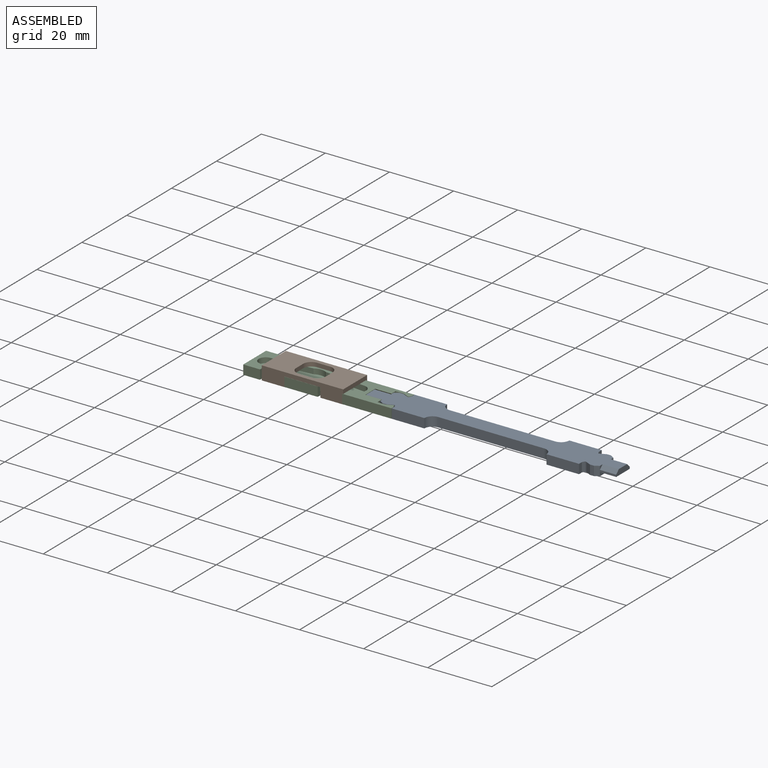
[diagram: assembled view]
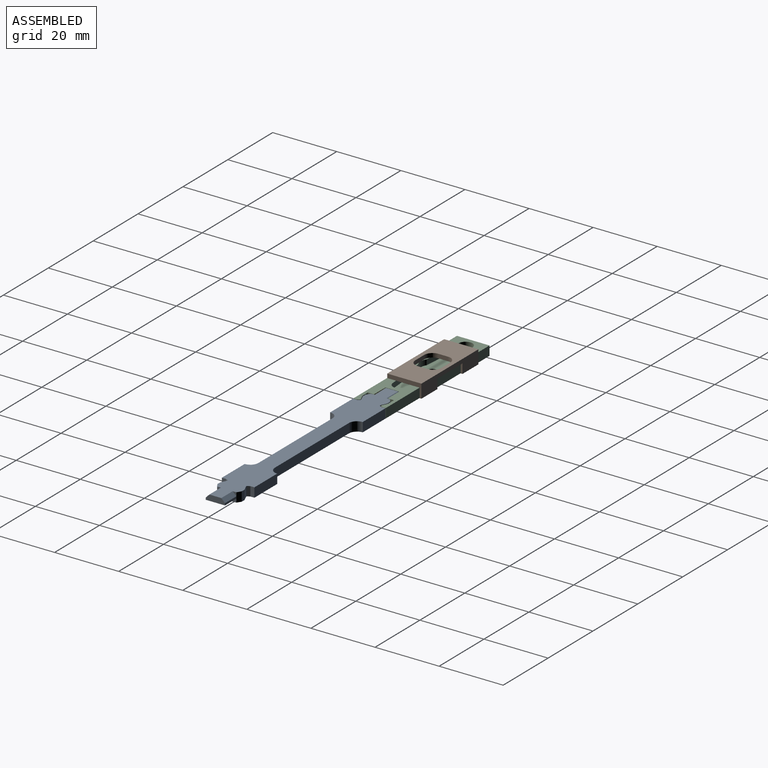
[diagram: assembled view, second angle]
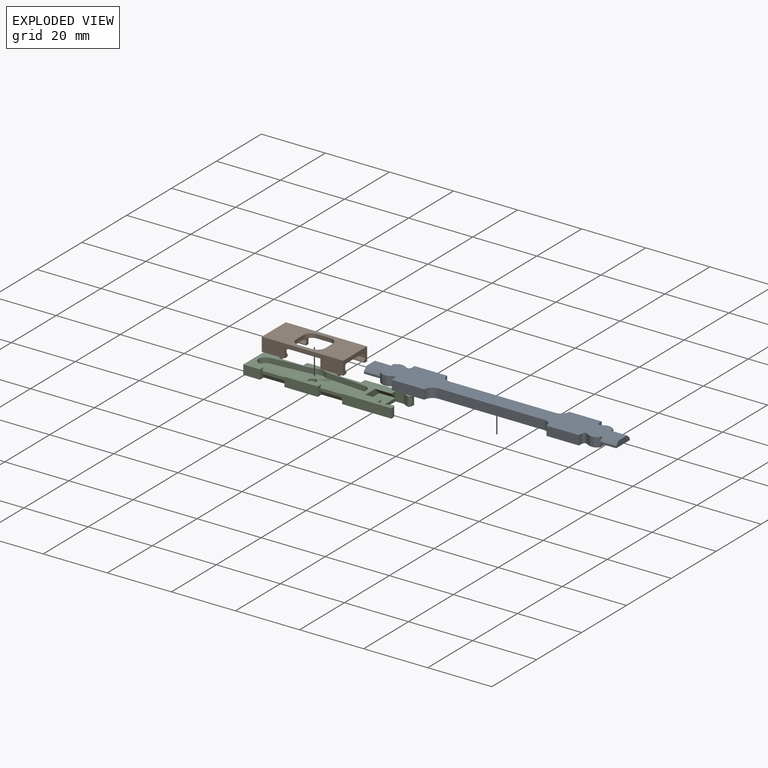
[diagram: exploded view]
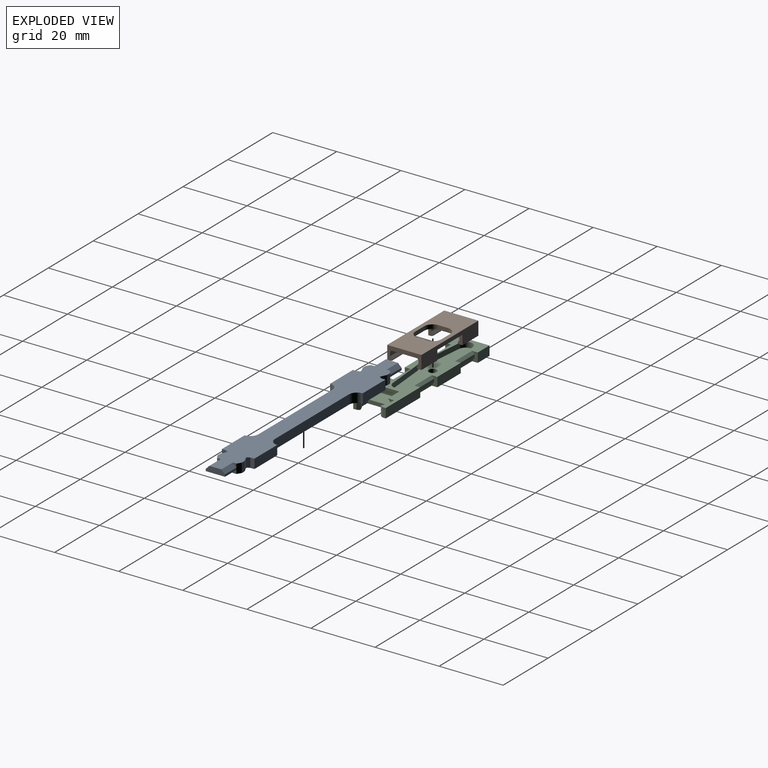
[diagram: exploded view, second angle]
ASSEMBLY  parts=3 mates=3
PART A: 54 faces, bbox 78.7x10.2x2.9 mm
  f0: plane 6.01x1.78mm, normal (-1,0,0), area 9.4mm2, adj f1,f3,f4,f20,f22,f24
  f1: plane 78.74x10.16mm, normal (0,0,1), area 514mm2, adj f0,f5,f6,f7,f8,f9,f10,f11
  f2: plane 68.58x10.16mm, normal (0,0,-1), area 476.2mm2, adj f5,f6,f7,f8,f9,f10,f11,f12
  f3: plane 5.08x0.64mm, normal (0,-1,0), area 3.2mm2, adj f0,f8,f22,f24
  f4: plane 5.08x0.64mm, normal (0,1,0), area 3.2mm2, adj f0,f13,f20,f22
  f5: plane 10.16x2.92mm, normal (0,1,0), area 29.7mm2, adj f1,f2,f18,f25
  f6: plane 10.16x2.92mm, normal (0,-1,0), area 29.7mm2, adj f1,f2,f9,f26
  f7: plane 2.92x1.27mm, normal (0,-1,0), area 3.7mm2, adj f1,f2,f8,f12
  f8: plane 2.92x1.27mm, normal (-0.53,-0.85,0), area 4.4mm2, adj f1,f2,f3,f7,f21,f23
  f9: plane 2.92x1.27mm, normal (-1,0,0), area 3.7mm2, adj f1,f2,f6,f10
  f10: plane 2.92x0.8mm, normal (-0.89,-0.45,0), area 2.6mm2, adj f1,f2,f9,f11
  f11: plane 2.92x0.41mm, normal (0,-1,0), area 1.2mm2, adj f1,f2,f10,f12
  f12: plane 2.92x1.72mm, normal (0.42,-0.91,0), area 5.6mm2, adj f1,f2,f7,f11
  f13: plane 2.92x1.27mm, normal (-0.53,0.85,0), area 4.4mm2, adj f1,f2,f4,f14,f19,f21
  f14: plane 2.92x1.27mm, normal (0,1,0), area 3.7mm2, adj f1,f2,f13,f15
  f15: plane 2.92x1.72mm, normal (0.42,0.91,0), area 5.6mm2, adj f1,f2,f14,f16
  f16: plane 2.92x0.41mm, normal (0,1,0), area 1.2mm2, adj f1,f2,f15,f17
  f17: plane 2.92x0.8mm, normal (-0.89,0.45,0), area 2.6mm2, adj f1,f2,f16,f18
  f18: plane 2.92x1.27mm, normal (-1,0,0), area 3.7mm2, adj f1,f2,f5,f17
  f19: plane 1.14x1.14mm, normal (-1,0,0), area 0.7mm2, adj f1,f13,f20
  f20: plane 5.08x1.14mm, normal (0,0.71,0.71), area 8.2mm2, adj f0,f1,f4,f19
  f21: plane 6.01x1.14mm, normal (-1,0,0), area 6.9mm2, adj f2,f8,f13,f22
  f22: plane 6.01x5.08mm, normal (0,0,-1), area 30.5mm2, adj f0,f3,f4,f21
  f23: plane 1.14x1.14mm, normal (-1,0,0), area 0.7mm2, adj f1,f8,f24
  f24: plane 5.08x1.14mm, normal (0,-0.71,0.71), area 8.2mm2, adj f0,f1,f3,f23
  f25: cylinder r=2.54mm len=2.92mm, axis (0,0,1), area 11.7mm2, adj f1,f2,f5,f27
  f26: cylinder r=2.54mm len=2.92mm, axis (0,0,1), area 11.7mm2, adj f1,f2,f6,f28
  f27: plane 33.02x2.92mm, normal (0,1,0), area 96.5mm2, adj f1,f2,f25,f52
  f28: plane 33.02x2.92mm, normal (0,-1,0), area 96.5mm2, adj f1,f2,f26,f53
  f29: plane 6.01x1.78mm, normal (1,0,0), area 9.4mm2, adj f1,f30,f31,f47,f49,f51
  f30: plane 5.08x0.64mm, normal (0,-1,0), area 3.2mm2, adj f29,f35,f49,f51
  f31: plane 5.08x0.64mm, normal (0,1,0), area 3.2mm2, adj f29,f40,f47,f49
  f32: plane 10.16x2.92mm, normal (0,1,0), area 29.7mm2, adj f1,f2,f45,f52
  f33: plane 10.16x2.92mm, normal (0,-1,0), area 29.7mm2, adj f1,f2,f36,f53
  f34: plane 2.92x1.27mm, normal (0,-1,0), area 3.7mm2, adj f1,f2,f35,f39
  f35: plane 2.92x1.27mm, normal (0.53,-0.85,0), area 4.4mm2, adj f1,f2,f30,f34,f48,f50
  f36: plane 2.92x1.27mm, normal (1,0,0), area 3.7mm2, adj f1,f2,f33,f37
  f37: plane 2.92x0.8mm, normal (0.89,-0.45,0), area 2.6mm2, adj f1,f2,f36,f38
  f38: plane 2.92x0.41mm, normal (0,-1,0), area 1.2mm2, adj f1,f2,f37,f39
  f39: plane 2.92x1.72mm, normal (-0.42,-0.91,0), area 5.6mm2, adj f1,f2,f34,f38
  f40: plane 2.92x1.27mm, normal (0.53,0.85,0), area 4.4mm2, adj f1,f2,f31,f41,f46,f48
  f41: plane 2.92x1.27mm, normal (0,1,0), area 3.7mm2, adj f1,f2,f40,f42
  f42: plane 2.92x1.72mm, normal (-0.42,0.91,0), area 5.6mm2, adj f1,f2,f41,f43
  f43: plane 2.92x0.41mm, normal (0,1,0), area 1.2mm2, adj f1,f2,f42,f44
  f44: plane 2.92x0.8mm, normal (0.89,0.45,0), area 2.6mm2, adj f1,f2,f43,f45
  f45: plane 2.92x1.27mm, normal (1,0,0), area 3.7mm2, adj f1,f2,f32,f44
  f46: plane 1.14x1.14mm, normal (1,0,0), area 0.7mm2, adj f1,f40,f47
  f47: plane 5.08x1.14mm, normal (0,0.71,0.71), area 8.2mm2, adj f1,f29,f31,f46
  f48: plane 6.01x1.14mm, normal (1,0,0), area 6.9mm2, adj f2,f35,f40,f49
  f49: plane 6.01x5.08mm, normal (0,0,-1), area 30.5mm2, adj f29,f30,f31,f48
  f50: plane 1.14x1.14mm, normal (1,0,0), area 0.7mm2, adj f1,f35,f51
  f51: plane 5.08x1.14mm, normal (0,-0.71,0.71), area 8.2mm2, adj f1,f29,f30,f50
  f52: cylinder r=2.54mm len=2.92mm, axis (0,0,1), area 11.7mm2, adj f1,f2,f27,f32
  f53: cylinder r=2.54mm len=2.92mm, axis (0,0,1), area 11.7mm2, adj f1,f2,f28,f33
PART B: 42 faces, bbox 25.4x10.7x4.2 mm
  f0: plane 25.4x4.24mm, normal (0,1,0), area 74.5mm2, adj f2,f3,f8,f9,f10,f19,f20,f21
  f1: plane 25.4x4.24mm, normal (0,-1,0), area 74.5mm2, adj f2,f3,f8,f14,f15,f20,f25,f26
  f2: plane 25.4x10.67mm, normal (0,0,1), area 158.1mm2, adj f0,f1,f8,f9,f14,f19,f20,f25
  f3: plane 25.4x10.67mm, normal (0,0,-1), area 202.2mm2, adj f0,f1,f8,f20,f30,f31,f32,f33
  f4: plane 7.11x1.02mm, normal (0,1,0), area 7.2mm2, adj f20,f25,f27,f34
  f5: plane 7.11x1.02mm, normal (0,-1,0), area 7.2mm2, adj f19,f20,f24,f35
  f6: plane 7.11x1.02mm, normal (0,1,0), area 7.2mm2, adj f8,f14,f18,f36
  f7: plane 7.11x1.02mm, normal (0,-1,0), area 7.2mm2, adj f8,f9,f11,f37
  f8: plane 10.67x4.24mm, normal (-1,0,0), area 20mm2, adj f0,f1,f2,f3,f6,f7,f10,f11
  f9: plane 2.97x1.55mm, normal (1,0,0), area 3.2mm2, adj f0,f2,f7,f10,f11,f12,f13,f37
  f10: plane 7.11x0.91mm, normal (0,0,1), area 6.5mm2, adj f0,f8,f9,f13
  f11: plane 7.11x0.91mm, normal (0,-0.85,-0.52), area 7.6mm2, adj f7,f8,f9,f12
  f12: plane 7.11x0.21mm, normal (0,-1,0), area 1.5mm2, adj f8,f9,f11,f13
  f13: plane 7.11x0.56mm, normal (0,-0.35,0.94), area 4.2mm2, adj f8,f9,f10,f12
  f14: plane 2.97x1.55mm, normal (1,0,0), area 3.2mm2, adj f1,f2,f6,f15,f16,f17,f18,f36
  f15: plane 7.11x0.91mm, normal (0,0,1), area 6.5mm2, adj f1,f8,f14,f17
  f16: plane 7.11x0.21mm, normal (0,1,0), area 1.5mm2, adj f8,f14,f17,f18
  f17: plane 7.11x0.56mm, normal (0,0.35,0.94), area 4.2mm2, adj f8,f14,f15,f16
  f18: plane 7.11x0.91mm, normal (0,0.85,-0.52), area 7.6mm2, adj f6,f8,f14,f16
  f19: plane 2.97x1.55mm, normal (-1,0,0), area 3.2mm2, adj f0,f2,f5,f21,f22,f23,f24,f35
  f20: plane 10.67x4.24mm, normal (1,0,0), area 20mm2, adj f0,f1,f2,f3,f4,f5,f21,f22
  f21: plane 7.11x0.91mm, normal (0,0,1), area 6.5mm2, adj f0,f19,f20,f23
  f22: plane 7.11x0.21mm, normal (0,-1,0), area 1.5mm2, adj f19,f20,f23,f24
  f23: plane 7.11x0.56mm, normal (0,-0.35,0.94), area 4.2mm2, adj f19,f20,f21,f22
  f24: plane 7.11x0.91mm, normal (0,-0.85,-0.52), area 7.6mm2, adj f5,f19,f20,f22
  f25: plane 2.97x1.55mm, normal (-1,0,0), area 3.2mm2, adj f1,f2,f4,f26,f27,f28,f29,f34
  f26: plane 7.11x0.91mm, normal (0,0,1), area 6.5mm2, adj f1,f20,f25,f29
  f27: plane 7.11x0.91mm, normal (0,0.85,-0.52), area 7.6mm2, adj f4,f20,f25,f28
  f28: plane 7.11x0.21mm, normal (0,1,0), area 1.5mm2, adj f20,f25,f27,f29
  f29: plane 7.11x0.56mm, normal (0,0.35,0.94), area 4.2mm2, adj f20,f25,f26,f28
  f30: plane 4.06x1.27mm, normal (0,-1,0), area 5.2mm2, adj f2,f3,f38,f41
  f31: plane 3.05x1.27mm, normal (1,0,0), area 3.9mm2, adj f2,f3,f38,f39
  f32: plane 4.06x1.27mm, normal (0,1,0), area 5.2mm2, adj f2,f3,f39,f40
  f33: plane 3.05x1.27mm, normal (-1,0,0), area 3.9mm2, adj f2,f3,f40,f41
  f34: cylinder r=0.64mm len=7.11mm, axis (-1,0,0), area 7.1mm2, adj f2,f4,f20,f25
  f35: cylinder r=0.64mm len=7.11mm, axis (1,0,0), area 7.1mm2, adj f2,f5,f19,f20
  f36: cylinder r=0.64mm len=7.11mm, axis (-1,0,0), area 7.1mm2, adj f2,f6,f8,f14
  f37: cylinder r=0.64mm len=7.11mm, axis (1,0,0), area 7.1mm2, adj f2,f7,f8,f9
  f38: cylinder r=2.54mm len=2.54mm, axis (0,0,1), area 5.1mm2, adj f2,f3,f30,f31
  f39: cylinder r=2.54mm len=2.54mm, axis (0,0,-1), area 5.1mm2, adj f2,f3,f31,f32
  f40: cylinder r=2.54mm len=2.54mm, axis (0,0,1), area 5.1mm2, adj f2,f3,f32,f33
  f41: cylinder r=2.54mm len=2.54mm, axis (0,0,-1), area 5.1mm2, adj f2,f3,f30,f33
PART C: 56 faces, bbox 46.2x10.2x2.9 mm
  f0: plane 1.91x1.91mm, normal (1,0,0), area 1.8mm2, adj f2,f44,f52
  f1: plane 8.13x1.02mm, normal (1,0,0), area 8.3mm2, adj f32,f42,f44,f53
  f2: plane 46.23x10.16mm, normal (0,0,1), area 173.9mm2, adj f0,f3,f4,f5,f6,f7,f8,f9
  f3: plane 2.92x1.02mm, normal (1,0,0), area 3mm2, adj f2,f12,f32,f47
  f4: plane 2.92x1.78mm, normal (-1,0,0), area 3.7mm2, adj f2,f10,f29,f32,f37,f49
  f5: plane 2.92x1.78mm, normal (1,0,0), area 3.7mm2, adj f2,f21,f25,f32,f36,f48
  f6: plane 2.92x1.78mm, normal (-1,0,0), area 3.7mm2, adj f2,f11,f25,f32,f36,f48
  f7: plane 2.92x1.78mm, normal (-1,0,0), area 3.7mm2, adj f2,f12,f28,f32,f35,f50
  f8: plane 2.92x1.78mm, normal (1,0,0), area 3.7mm2, adj f2,f13,f28,f32,f35,f50
  f9: plane 2.92x1.78mm, normal (1,0,0), area 3.7mm2, adj f2,f23,f27,f32,f34,f51
  f10: plane 15.37x2.92mm, normal (0,1,0), area 44.9mm2, adj f2,f4,f32,f38
  f11: plane 10.41x2.92mm, normal (0,1,0), area 30.4mm2, adj f2,f6,f30,f32
  f12: plane 15.37x2.92mm, normal (0,-1,0), area 44.9mm2, adj f2,f3,f7,f32
  f13: plane 10.41x2.92mm, normal (0,-1,0), area 30.4mm2, adj f2,f8,f26,f32
  f14: cylinder r=2.16mm len=4.3mm, axis (0,0,-1), area 10.6mm2, adj f2,f15,f24,f33
  f15: plane 12.85x1.65mm, normal (0.09,-1,0), area 21.3mm2, adj f2,f14,f16,f33
  f16: cylinder r=3.81mm len=3.9mm, axis (0,0,-1), area 6.7mm2, adj f2,f15,f17,f33
  f17: plane 12.85x1.65mm, normal (-0.09,-1,0), area 21.3mm2, adj f2,f16,f18,f33
  f18: cylinder r=2.16mm len=4.3mm, axis (0,0,-1), area 10.6mm2, adj f2,f17,f19,f33
  f19: plane 12.85x1.65mm, normal (-0.09,1,0), area 21.3mm2, adj f2,f18,f20,f33
  f20: cylinder r=3.81mm len=3.9mm, axis (0,0,-1), area 6.7mm2, adj f2,f19,f24,f33
  f21: plane 5.21x2.92mm, normal (0,1,0), area 15.2mm2, adj f2,f5,f22,f32
  f22: plane 10.16x2.92mm, normal (-1,0,0), area 29.7mm2, adj f2,f21,f23,f32
  f23: plane 5.21x2.92mm, normal (0,-1,0), area 15.2mm2, adj f2,f9,f22,f32
  f24: plane 12.85x1.65mm, normal (0.09,1,0), area 21.3mm2, adj f2,f14,f20,f33
  f25: plane 7.62x0.89mm, normal (0,1,0), area 6.8mm2, adj f5,f6,f36,f48
  f26: plane 2.92x1.78mm, normal (-1,0,0), area 3.7mm2, adj f2,f13,f27,f32,f34,f51
  f27: plane 7.62x0.89mm, normal (0,-1,0), area 6.8mm2, adj f9,f26,f34,f51
  f28: plane 7.62x0.89mm, normal (0,-1,0), area 6.8mm2, adj f7,f8,f35,f50
  f29: plane 7.62x0.89mm, normal (0,1,0), area 6.8mm2, adj f4,f30,f37,f49
  f30: plane 2.92x1.78mm, normal (1,0,0), area 3.7mm2, adj f2,f11,f29,f32,f37,f49
  f31: cylinder r=1.27mm len=2.54mm, axis (0,0,1), area 10.1mm2, adj f32,f33
  f32: plane 46.23x10.16mm, normal (0,0,-1), area 371.5mm2, adj f1,f3,f4,f5,f6,f7,f8,f9
  f33: plane 33.53x7.62mm, normal (0,0,1), area 175.7mm2, adj f14,f15,f16,f17,f18,f19,f20,f24
  f34: plane 7.62x1.27mm, normal (0,-0.86,-0.51), area 11.3mm2, adj f9,f26,f27,f32
  f35: plane 7.62x1.27mm, normal (0,-0.86,-0.51), area 11.3mm2, adj f7,f8,f28,f32
  f36: plane 7.62x1.27mm, normal (0,0.86,-0.51), area 11.3mm2, adj f5,f6,f25,f32
  f37: plane 7.62x1.27mm, normal (0,0.86,-0.51), area 11.3mm2, adj f4,f29,f30,f32
  f38: plane 2.92x1.02mm, normal (1,0,0), area 3mm2, adj f2,f10,f32,f39
  f39: plane 2.92x0.8mm, normal (0.89,-0.45,0), area 2.6mm2, adj f2,f32,f38,f40
  f40: plane 2.92x0.41mm, normal (0,-1,0), area 1.2mm2, adj f2,f32,f39,f41
  f41: plane 2.92x1.72mm, normal (-0.42,-0.91,0), area 5.6mm2, adj f2,f32,f40,f42
  f42: plane 2.92x2.54mm, normal (0,-1,0), area 7.4mm2, adj f1,f2,f32,f41,f43
  f43: plane 1.91x1.91mm, normal (1,0,0), area 1.8mm2, adj f2,f42,f54
  f44: plane 2.92x2.54mm, normal (0,1,0), area 7.4mm2, adj f0,f1,f2,f32,f45
  f45: plane 2.92x1.72mm, normal (-0.42,0.91,0), area 5.6mm2, adj f2,f32,f44,f46
  f46: plane 2.92x0.41mm, normal (0,1,0), area 1.2mm2, adj f2,f32,f45,f47
  f47: plane 2.92x0.8mm, normal (0.89,0.45,0), area 2.6mm2, adj f2,f3,f32,f46
  f48: plane 7.62x0.76mm, normal (0,0.71,0.71), area 8.2mm2, adj f2,f5,f6,f25
  f49: plane 7.62x0.76mm, normal (0,0.71,0.71), area 8.2mm2, adj f2,f4,f29,f30
  f50: plane 7.62x0.76mm, normal (0,-0.71,0.71), area 8.2mm2, adj f2,f7,f8,f28
  f51: plane 7.62x0.76mm, normal (0,-0.71,0.71), area 8.2mm2, adj f2,f9,f26,f27
  f52: plane 5.08x1.91mm, normal (0,0.71,-0.71), area 13.7mm2, adj f0,f2,f53,f55
  f53: plane 8.13x5.08mm, normal (0,0,1), area 41.3mm2, adj f1,f52,f54,f55
  f54: plane 5.08x1.91mm, normal (0,-0.71,-0.71), area 13.7mm2, adj f2,f43,f53,f55
  f55: plane 8.13x1.91mm, normal (1,0,0), area 11.9mm2, adj f2,f52,f53,f54
PLACE A t=(28.32,0,-0.64)mm
PLACE B rot(axis=(1,0,0),180deg) t=(0.41,0.31,3.56)mm
PLACE C t=(0,0,0.64)mm fixed
MATE planar C.f2 <-> B.f2  axis (0,0,1) through (-8.37,-2.71,2.29)mm
MATE planar C.f2 <-> A.f1  axis (0,0,1) through (18.03,0,2.29)mm
MATE planar C.f10 <-> A.f5  axis (0,1,0) through (28.19,5.08,0.83)mm
